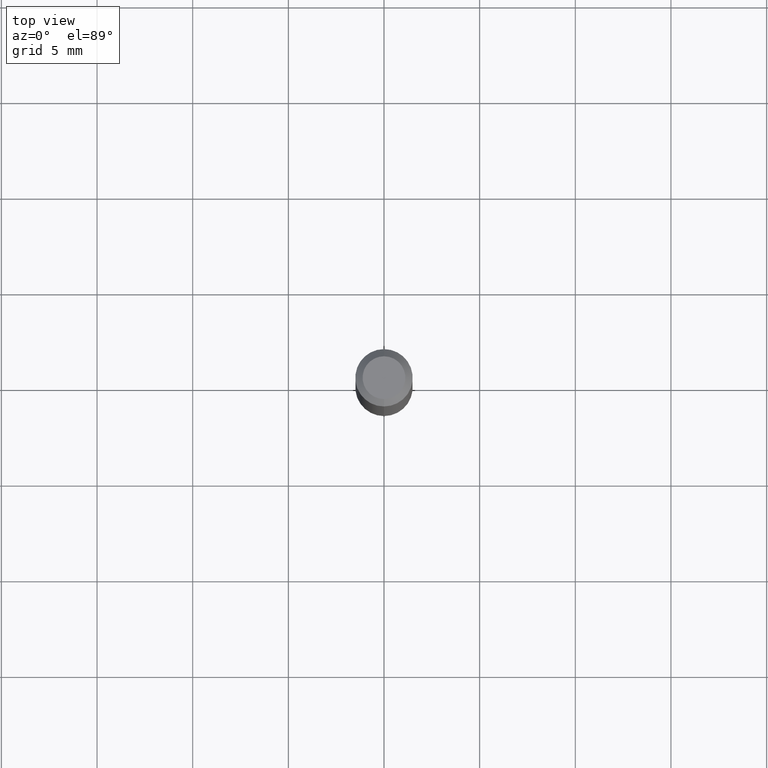
[diagram: clean part render]
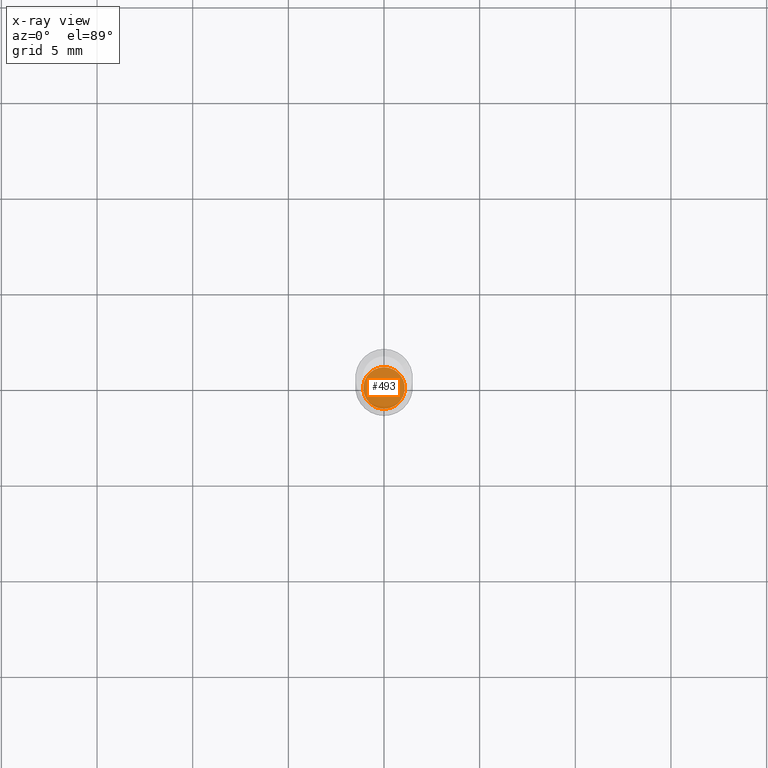
[diagram: x-ray — body ghosted, one internal face saturated and labeled with its STEP entity id]
A machine part, top view, then the same camera in x-ray: the body is ghosted and one INTERNAL B-rep face — a face not visible from any outside direction — is saturated and labeled: STEP entity #493.
In plain terms, the highlighted planar face has unit normal (-0, 0, 1).
Its self-contained STEP definition (entity closure, byte-faithful):
#1 = DIRECTION ( 'NONE',  ( -6.982962677686265922E-15, -1.000000000000000000, 3.491473598965565172E-15 ) ) ;
#12 = AXIS2_PLACEMENT_3D ( 'NONE', #149, #497, #180 ) ;
#36 = EDGE_LOOP ( 'NONE', ( #280, #101 ) ) ;
#37 = FACE_OUTER_BOUND ( 'NONE', #36, .T. ) ;
#50 = CARTESIAN_POINT ( 'NONE',  ( -2.988708026049418867E-16, -0.04280000000000431376, -1.236299999999999288 ) ) ;
#64 = AXIS2_PLACEMENT_3D ( 'NONE', #268, #319, #1 ) ;
#101 = ORIENTED_EDGE ( 'NONE', *, *, #162, .F. ) ;
#120 = PLANE ( 'NONE',  #64 ) ;
#139 = VERTEX_POINT ( 'NONE', #140 ) ;
#140 = CARTESIAN_POINT ( 'NONE',  ( 3.058886477447519585E-16, 0.04279999999999567484, -1.236299999999999955 ) ) ;
#149 = CARTESIAN_POINT ( 'NONE',  ( 3.023339766951449250E-29, -4.316508810401126129E-15, -1.236299999999999510 ) ) ;
#162 = EDGE_CURVE ( 'NONE', #139, #315, #168, .T. ) ;
#168 = CIRCLE ( 'NONE', #234, 0.04279999999999999083 ) ;
#180 = DIRECTION ( 'NONE',  ( -6.982962677686265922E-15, -1.000000000000000000, 6.382822415103419870E-15 ) ) ;
#192 = DIRECTION ( 'NONE',  ( -6.982962677686265922E-15, -1.000000000000000000, 6.382822415103419870E-15 ) ) ;
#234 = AXIS2_PLACEMENT_3D ( 'NONE', #393, #269, #192 ) ;
#257 = EDGE_CURVE ( 'NONE', #315, #139, #310, .T. ) ;
#268 = CARTESIAN_POINT ( 'NONE',  ( 3.023339766951449250E-29, -4.316508810401126129E-15, -1.236299999999999510 ) ) ;
#269 = DIRECTION ( 'NONE',  ( -2.445474210912764340E-29, 3.491473598965564778E-15, 1.000000000000000000 ) ) ;
#280 = ORIENTED_EDGE ( 'NONE', *, *, #257, .F. ) ;
#310 = CIRCLE ( 'NONE', #12, 0.04279999999999999083 ) ;
#315 = VERTEX_POINT ( 'NONE', #50 ) ;
#319 = DIRECTION ( 'NONE',  ( -2.445474210912763779E-29, 3.491473598965565172E-15, 1.000000000000000000 ) ) ;
#393 = CARTESIAN_POINT ( 'NONE',  ( 3.023339766951449250E-29, -4.316508810401126129E-15, -1.236299999999999510 ) ) ;
#493 = ADVANCED_FACE ( 'NONE', ( #37 ), #120, .F. ) ;
#497 = DIRECTION ( 'NONE',  ( -2.445474210912764340E-29, 3.491473598965564778E-15, 1.000000000000000000 ) ) ;